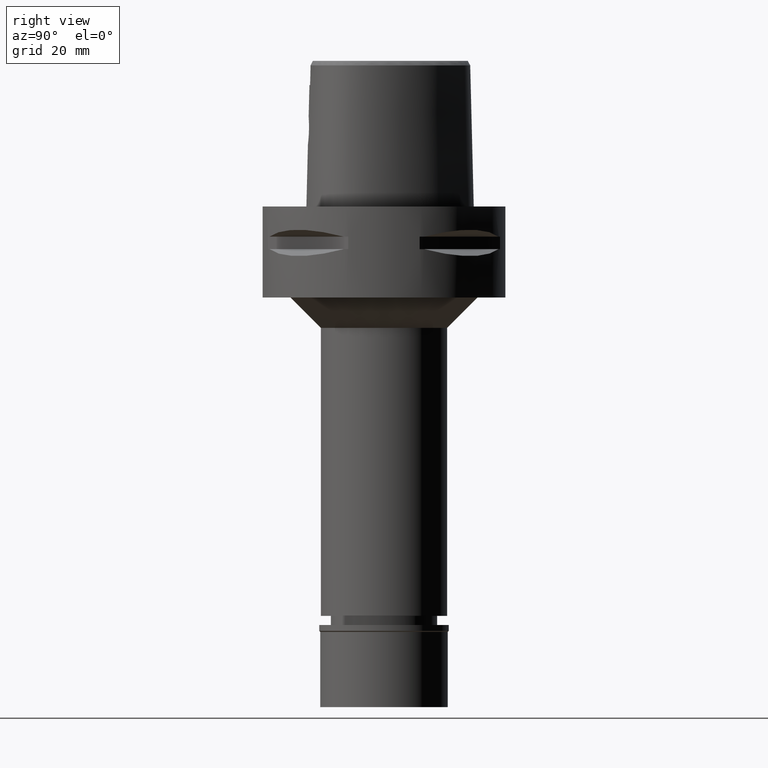
[diagram: clean part render]
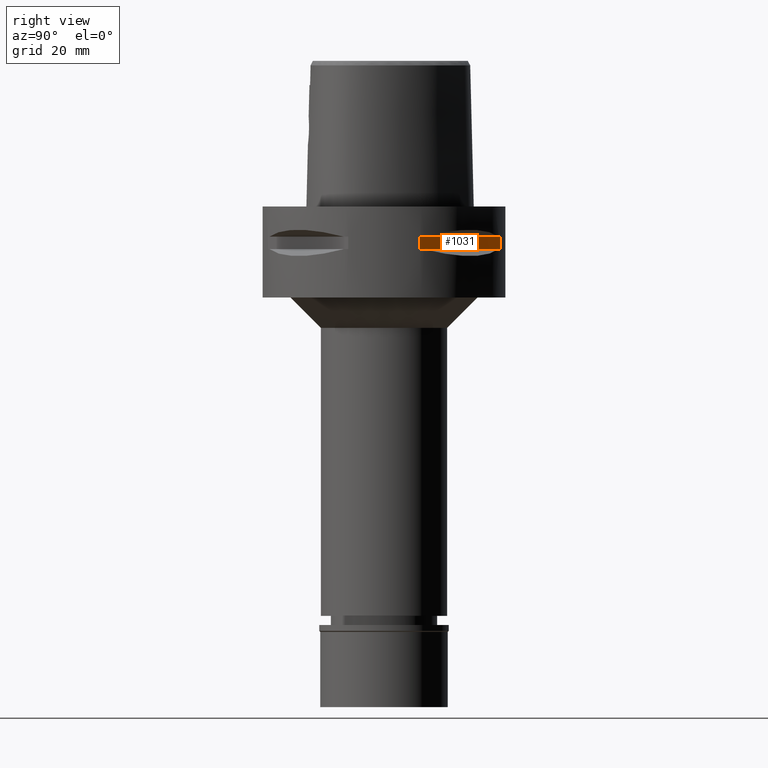
[diagram: same view with one face highlighted and labeled with its STEP entity id]
A machine part, right view. The second image highlights one B-rep face of the part: STEP entity #1031.
In plain terms, the highlighted planar face has unit normal (-0.7071, -0.7071, 0).
Its self-contained STEP definition (entity closure, byte-faithful):
#41 = VERTEX_POINT ( 'NONE', #4515 ) ;
#622 = EDGE_CURVE ( 'NONE', #3548, #41, #3803, .T. ) ;
#633 = EDGE_CURVE ( 'NONE', #5052, #2044, #4170, .T. ) ;
#945 = DIRECTION ( 'NONE',  ( -0.7071067811865474617, 0.7071067811865474617, 0.0000000000000000000 ) ) ;
#1031 = ADVANCED_FACE ( 'NONE', ( #3952 ), #4805, .F. ) ;
#1093 = CARTESIAN_POINT ( 'NONE',  ( 38.23211342708000160, 11.76033600280999991, -9.950000000000001066 ) ) ;
#1183 = DIRECTION ( 'NONE',  ( -0.7071067811865475727, -0.7071067811865475727, 0.0000000000000000000 ) ) ;
#1992 = ORIENTED_EDGE ( 'NONE', *, *, #633, .T. ) ;
#2044 = VERTEX_POINT ( 'NONE', #2275 ) ;
#2086 = EDGE_LOOP ( 'NONE', ( #5100, #1992, #3104, #3162 ) ) ;
#2129 = AXIS2_PLACEMENT_3D ( 'NONE', #3566, #1183, #4341 ) ;
#2225 = VECTOR ( 'NONE', #3672, 1000.000000000000114 ) ;
#2275 = CARTESIAN_POINT ( 'NONE',  ( 38.23211342708000160, 11.76033600280999991, -14.05000000000000071 ) ) ;
#2450 = CARTESIAN_POINT ( 'NONE',  ( 38.23211342708000160, 11.76033600280999991, -9.950000000000001066 ) ) ;
#2773 = EDGE_CURVE ( 'NONE', #2044, #3548, #4538, .T. ) ;
#2807 = CARTESIAN_POINT ( 'NONE',  ( 38.23211342708000160, 11.76033600280999991, -9.950000000000001066 ) ) ;
#2909 = CARTESIAN_POINT ( 'NONE',  ( 38.23211342708000160, 11.76033600280999991, -14.05000000000000071 ) ) ;
#2947 = DIRECTION ( 'NONE',  ( 0.0000000000000000000, 0.0000000000000000000, -1.000000000000000000 ) ) ;
#3003 = CARTESIAN_POINT ( 'NONE',  ( 11.76033600280999991, 38.23211342708000160, -14.05000000000000071 ) ) ;
#3053 = DIRECTION ( 'NONE',  ( 0.0000000000000000000, 0.0000000000000000000, 1.000000000000000000 ) ) ;
#3104 = ORIENTED_EDGE ( 'NONE', *, *, #2773, .T. ) ;
#3162 = ORIENTED_EDGE ( 'NONE', *, *, #622, .T. ) ;
#3548 = VERTEX_POINT ( 'NONE', #4773 ) ;
#3566 = CARTESIAN_POINT ( 'NONE',  ( 7.318555185280999353, 42.67389424461000402, -9.950000000000001066 ) ) ;
#3672 = DIRECTION ( 'NONE',  ( -0.7071067811865474617, 0.7071067811865474617, 0.0000000000000000000 ) ) ;
#3803 = LINE ( 'NONE', #3003, #5022 ) ;
#3952 = FACE_OUTER_BOUND ( 'NONE', #2086, .T. ) ;
#4170 = LINE ( 'NONE', #1093, #4199 ) ;
#4199 = VECTOR ( 'NONE', #2947, 1000.000000000000000 ) ;
#4341 = DIRECTION ( 'NONE',  ( -0.7071067811865475727, 0.7071067811865475727, 0.0000000000000000000 ) ) ;
#4375 = VECTOR ( 'NONE', #945, 1000.000000000000114 ) ;
#4423 = LINE ( 'NONE', #2450, #2225 ) ;
#4515 = CARTESIAN_POINT ( 'NONE',  ( 11.76033600280999991, 38.23211342708000160, -9.950000000000001066 ) ) ;
#4538 = LINE ( 'NONE', #2909, #4375 ) ;
#4651 = EDGE_CURVE ( 'NONE', #5052, #41, #4423, .T. ) ;
#4773 = CARTESIAN_POINT ( 'NONE',  ( 11.76033600280999991, 38.23211342708000160, -14.05000000000000071 ) ) ;
#4805 = PLANE ( 'NONE',  #2129 ) ;
#5022 = VECTOR ( 'NONE', #3053, 1000.000000000000000 ) ;
#5052 = VERTEX_POINT ( 'NONE', #2807 ) ;
#5100 = ORIENTED_EDGE ( 'NONE', *, *, #4651, .F. ) ;